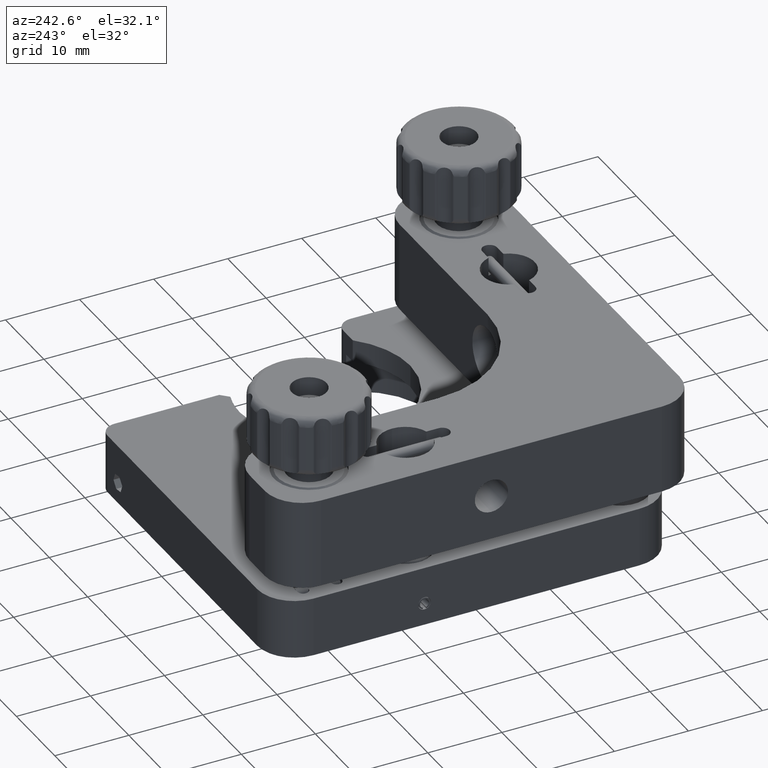
[diagram: clean part render]
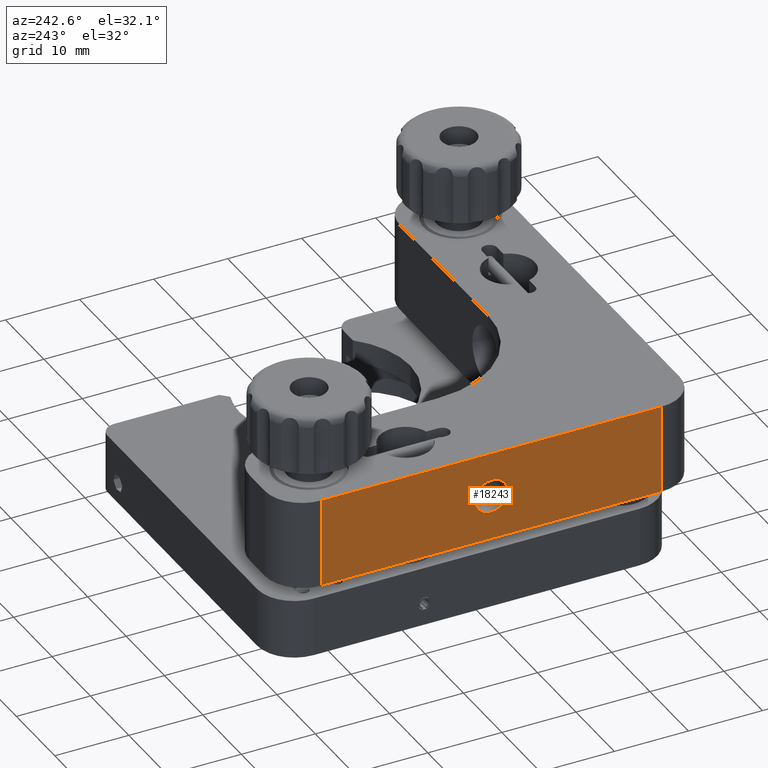
[diagram: same view with one face highlighted and labeled with its STEP entity id]
A machine part, auxiliary view. The second image highlights one B-rep face of the part: STEP entity #18243.
In plain terms, the highlighted planar face has unit normal (-1, -0, -0).
Its self-contained STEP definition (entity closure, byte-faithful):
#238 = CARTESIAN_POINT ( 'NONE',  ( -27.99999999999995400, 22.99999999999995700, -6.999999999999966200 ) ) ;
#494 = VECTOR ( 'NONE', #15296, 1000.000000000000000 ) ;
#1041 = CARTESIAN_POINT ( 'NONE',  ( -27.99999999999995400, 22.99999999999995700, -6.999999999999966200 ) ) ;
#1211 = LINE ( 'NONE', #1041, #2977 ) ;
#1518 = LINE ( 'NONE', #20315, #13993 ) ;
#2408 = VERTEX_POINT ( 'NONE', #19727 ) ;
#2531 = FACE_OUTER_BOUND ( 'NONE', #15575, .T. ) ;
#2977 = VECTOR ( 'NONE', #13722, 1000.000000000000000 ) ;
#3157 = EDGE_CURVE ( 'NONE', #11159, #11485, #10205, .T. ) ;
#3483 = CARTESIAN_POINT ( 'NONE',  ( -27.99999999999993600, -22.99999999999997200, -6.999999999999966200 ) ) ;
#3599 = ORIENTED_EDGE ( 'NONE', *, *, #20056, .F. ) ;
#3616 = AXIS2_PLACEMENT_3D ( 'NONE', #19792, #4000, #19728 ) ;
#3705 = VERTEX_POINT ( 'NONE', #3483 ) ;
#4000 = DIRECTION ( 'NONE',  ( -1.000000000000000000, -2.516103267764621000E-016, -6.723868016484158300E-017 ) ) ;
#4266 = ORIENTED_EDGE ( 'NONE', *, *, #17388, .T. ) ;
#4535 = CIRCLE ( 'NONE', #17704, 2.249999999999999100 ) ;
#4566 = VECTOR ( 'NONE', #12574, 1000.000000000000000 ) ;
#4689 = CARTESIAN_POINT ( 'NONE',  ( -27.99999999999993600, -22.99999999999997200, 4.999999999999960900 ) ) ;
#5128 = VERTEX_POINT ( 'NONE', #238 ) ;
#5175 = AXIS2_PLACEMENT_3D ( 'NONE', #15404, #8851, #13787 ) ;
#5855 = DIRECTION ( 'NONE',  ( -5.430438707405648100E-016, 1.000000000000000000, -2.267180765223386400E-017 ) ) ;
#5905 = CARTESIAN_POINT ( 'NONE',  ( -27.99999999999995400, 22.99999999999995700, 4.999999999999960900 ) ) ;
#7264 = DIRECTION ( 'NONE',  ( 0.0000000000000000000, 1.000000000000000000, 0.0000000000000000000 ) ) ;
#7453 = PLANE ( 'NONE',  #5175 ) ;
#8851 = DIRECTION ( 'NONE',  ( -1.000000000000000000, -5.430438707405648100E-016, -6.723868016484157000E-017 ) ) ;
#9071 = ORIENTED_EDGE ( 'NONE', *, *, #15012, .F. ) ;
#10205 = CIRCLE ( 'NONE', #3616, 2.249999999999999100 ) ;
#10331 = CARTESIAN_POINT ( 'NONE',  ( -27.99999999999995400, 22.99999999999995700, 4.999999999999960900 ) ) ;
#10603 = VERTEX_POINT ( 'NONE', #5905 ) ;
#11061 = LINE ( 'NONE', #4689, #4566 ) ;
#11159 = VERTEX_POINT ( 'NONE', #17089 ) ;
#11485 = VERTEX_POINT ( 'NONE', #11663 ) ;
#11663 = CARTESIAN_POINT ( 'NONE',  ( -27.99999999999994700, -4.712110533461019000E-015, 1.249999999999993800 ) ) ;
#12398 = ORIENTED_EDGE ( 'NONE', *, *, #17034, .F. ) ;
#12574 = DIRECTION ( 'NONE',  ( -7.396254818132588400E-017, 2.493898841745733900E-017, -1.000000000000000000 ) ) ;
#13256 = ORIENTED_EDGE ( 'NONE', *, *, #3157, .F. ) ;
#13601 = CARTESIAN_POINT ( 'NONE',  ( -27.99999999999994700, -6.064593272014912100E-015, -1.000000000000005300 ) ) ;
#13722 = DIRECTION ( 'NONE',  ( -5.430438707405648100E-016, 1.000000000000000000, -2.267180765223386400E-017 ) ) ;
#13787 = DIRECTION ( 'NONE',  ( -5.430438707405648100E-016, 1.000000000000000000, -2.267180765223386400E-017 ) ) ;
#13993 = VECTOR ( 'NONE', #5855, 1000.000000000000000 ) ;
#15012 = EDGE_CURVE ( 'NONE', #2408, #3705, #11061, .T. ) ;
#15016 = ORIENTED_EDGE ( 'NONE', *, *, #18897, .T. ) ;
#15296 = DIRECTION ( 'NONE',  ( -7.396254818132588400E-017, 2.493898841745733900E-017, -1.000000000000000000 ) ) ;
#15404 = CARTESIAN_POINT ( 'NONE',  ( -27.99999999999995400, 22.99999999999995700, 4.999999999999960900 ) ) ;
#15575 = EDGE_LOOP ( 'NONE', ( #3599, #9071, #4266, #15016 ) ) ;
#16221 = EDGE_LOOP ( 'NONE', ( #12398, #13256 ) ) ;
#17034 = EDGE_CURVE ( 'NONE', #11485, #11159, #4535, .T. ) ;
#17089 = CARTESIAN_POINT ( 'NONE',  ( -27.99999999999994700, -4.324339555774307700E-015, -3.250000000000004000 ) ) ;
#17388 = EDGE_CURVE ( 'NONE', #2408, #10603, #1518, .T. ) ;
#17701 = FACE_BOUND ( 'NONE', #16221, .T. ) ;
#17704 = AXIS2_PLACEMENT_3D ( 'NONE', #13601, #19851, #7264 ) ;
#18243 = ADVANCED_FACE ( 'NONE', ( #17701, #2531 ), #7453, .T. ) ;
#18897 = EDGE_CURVE ( 'NONE', #10603, #5128, #20196, .T. ) ;
#19727 = CARTESIAN_POINT ( 'NONE',  ( -27.99999999999993600, -22.99999999999997200, 4.999999999999960900 ) ) ;
#19728 = DIRECTION ( 'NONE',  ( 0.0000000000000000000, 1.000000000000000000, 0.0000000000000000000 ) ) ;
#19792 = CARTESIAN_POINT ( 'NONE',  ( -27.99999999999994700, -6.064593272014912100E-015, -1.000000000000005300 ) ) ;
#19851 = DIRECTION ( 'NONE',  ( -1.000000000000000000, -2.516103267764621000E-016, -6.723868016484158300E-017 ) ) ;
#20056 = EDGE_CURVE ( 'NONE', #3705, #5128, #1211, .T. ) ;
#20196 = LINE ( 'NONE', #10331, #494 ) ;
#20315 = CARTESIAN_POINT ( 'NONE',  ( -27.99999999999995400, 22.99999999999995700, 4.999999999999960900 ) ) ;